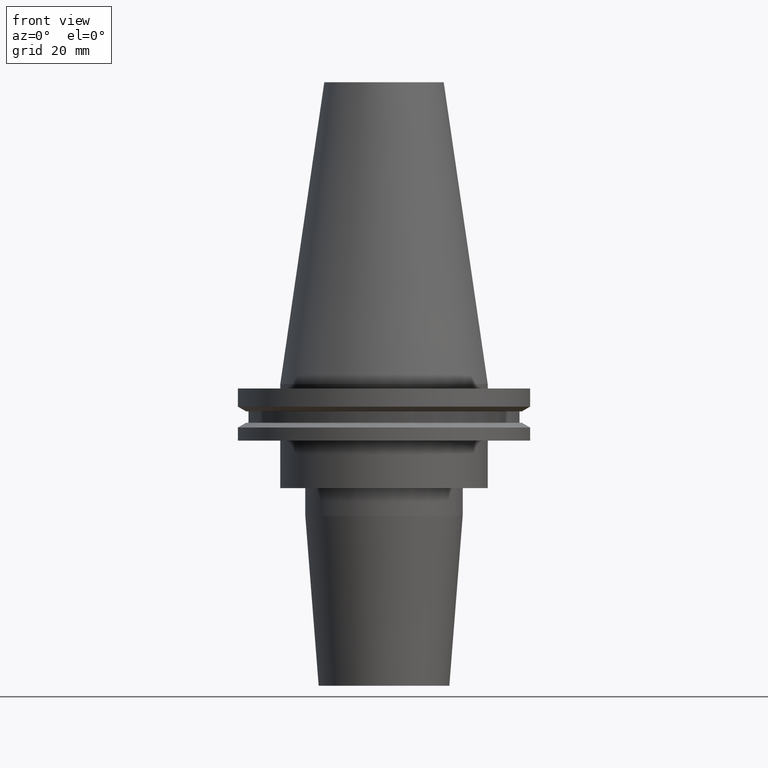
[diagram: clean part render]
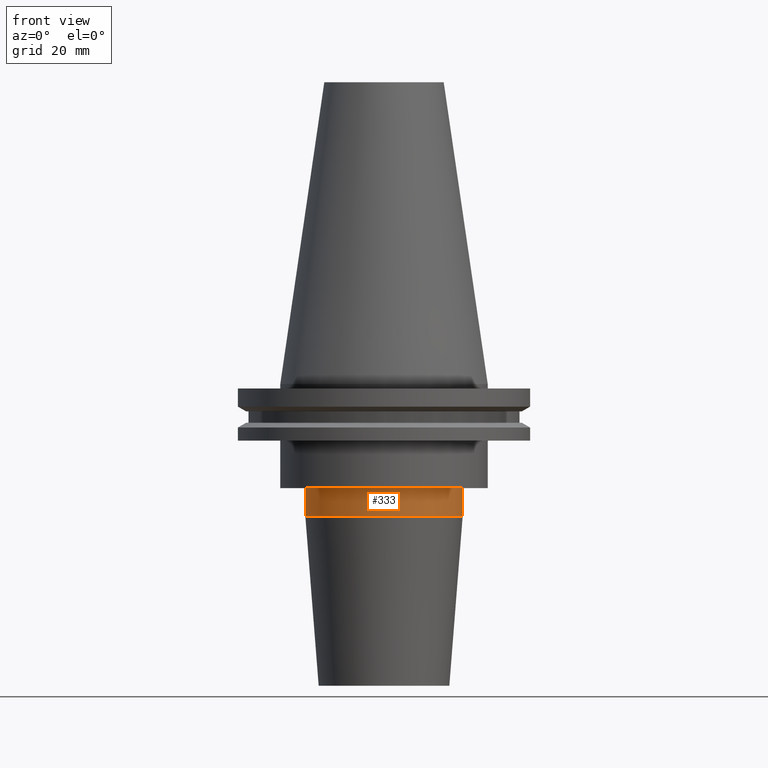
[diagram: same view with one face highlighted and labeled with its STEP entity id]
A machine part, front view. The second image highlights one B-rep face of the part: STEP entity #333.
In plain terms, the highlighted cylindrical surface (partial cylindrical patch) has radius 26.5 mm, axis along (-0, -0, 1).
Its self-contained STEP definition (entity closure, byte-faithful):
#10 = CARTESIAN_POINT ( 'NONE',  ( 0.000000000000000000, 0.000000000000000000, -35.04999999999999716 ) ) ;
#46 = VERTEX_POINT ( 'NONE', #738 ) ;
#132 = VERTEX_POINT ( 'NONE', #748 ) ;
#135 = AXIS2_PLACEMENT_3D ( 'NONE', #139, #272, #674 ) ;
#139 = CARTESIAN_POINT ( 'NONE',  ( 0.000000000000000000, 0.000000000000000000, -44.42207868720844743 ) ) ;
#189 = ORIENTED_EDGE ( 'NONE', *, *, #408, .T. ) ;
#218 = DIRECTION ( 'NONE',  ( 1.000000000000000000, 0.000000000000000000, 0.000000000000000000 ) ) ;
#223 = CYLINDRICAL_SURFACE ( 'NONE', #271, 26.50000000000000000 ) ;
#241 = CARTESIAN_POINT ( 'NONE',  ( 0.000000000000000000, 0.000000000000000000, 0.000000000000000000 ) ) ;
#258 = ORIENTED_EDGE ( 'NONE', *, *, #541, .F. ) ;
#259 = LINE ( 'NONE', #448, #584 ) ;
#271 = AXIS2_PLACEMENT_3D ( 'NONE', #241, #771, #218 ) ;
#272 = DIRECTION ( 'NONE',  ( -0.000000000000000000, -0.000000000000000000, 1.000000000000000000 ) ) ;
#333 = ADVANCED_FACE ( 'NONE', ( #432 ), #223, .T. ) ;
#346 = DIRECTION ( 'NONE',  ( 1.000000000000000000, 0.000000000000000000, 0.000000000000000000 ) ) ;
#389 = ORIENTED_EDGE ( 'NONE', *, *, #602, .T. ) ;
#399 = CIRCLE ( 'NONE', #135, 26.50000000000000000 ) ;
#406 = DIRECTION ( 'NONE',  ( -0.000000000000000000, -0.000000000000000000, 1.000000000000000000 ) ) ;
#408 = EDGE_CURVE ( 'NONE', #793, #132, #399, .T. ) ;
#409 = VECTOR ( 'NONE', #425, 1000.000000000000000 ) ;
#417 = EDGE_CURVE ( 'NONE', #793, #635, #259, .T. ) ;
#425 = DIRECTION ( 'NONE',  ( -0.000000000000000000, -0.000000000000000000, 1.000000000000000000 ) ) ;
#432 = FACE_OUTER_BOUND ( 'NONE', #717, .T. ) ;
#448 = CARTESIAN_POINT ( 'NONE',  ( -26.50000000000000000, 3.245314017740485765E-15, 0.000000000000000000 ) ) ;
#456 = CIRCLE ( 'NONE', #469, 26.50000000000000000 ) ;
#469 = AXIS2_PLACEMENT_3D ( 'NONE', #10, #406, #346 ) ;
#474 = CARTESIAN_POINT ( 'NONE',  ( -26.50000000000000000, 3.245314017740485765E-15, -35.04999999999999716 ) ) ;
#529 = DIRECTION ( 'NONE',  ( -0.000000000000000000, -0.000000000000000000, 1.000000000000000000 ) ) ;
#541 = EDGE_CURVE ( 'NONE', #635, #46, #456, .T. ) ;
#584 = VECTOR ( 'NONE', #529, 1000.000000000000000 ) ;
#602 = EDGE_CURVE ( 'NONE', #132, #46, #611, .T. ) ;
#611 = LINE ( 'NONE', #745, #409 ) ;
#635 = VERTEX_POINT ( 'NONE', #474 ) ;
#674 = DIRECTION ( 'NONE',  ( 1.000000000000000000, 0.000000000000000000, 0.000000000000000000 ) ) ;
#717 = EDGE_LOOP ( 'NONE', ( #776, #189, #389, #258 ) ) ;
#738 = CARTESIAN_POINT ( 'NONE',  ( 26.50000000000000000, 0.000000000000000000, -35.04999999999999716 ) ) ;
#745 = CARTESIAN_POINT ( 'NONE',  ( 26.50000000000000000, 0.000000000000000000, 0.000000000000000000 ) ) ;
#748 = CARTESIAN_POINT ( 'NONE',  ( 26.50000000000000000, 0.000000000000000000, -44.42207868720844743 ) ) ;
#770 = CARTESIAN_POINT ( 'NONE',  ( -26.50000000000000000, 3.245314017740485765E-15, -44.42207868720844743 ) ) ;
#771 = DIRECTION ( 'NONE',  ( -0.000000000000000000, -0.000000000000000000, 1.000000000000000000 ) ) ;
#776 = ORIENTED_EDGE ( 'NONE', *, *, #417, .F. ) ;
#793 = VERTEX_POINT ( 'NONE', #770 ) ;